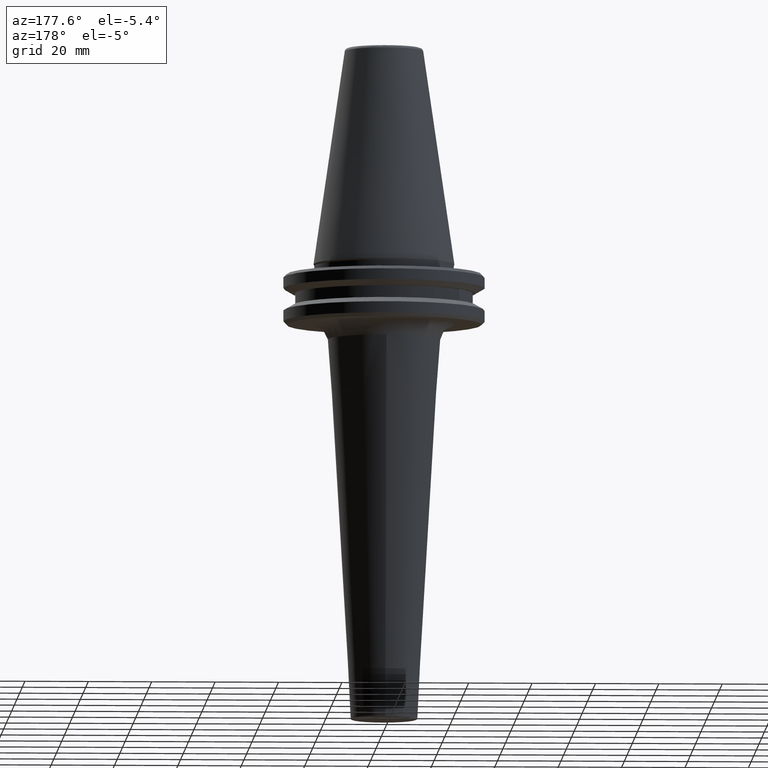
[diagram: clean part render]
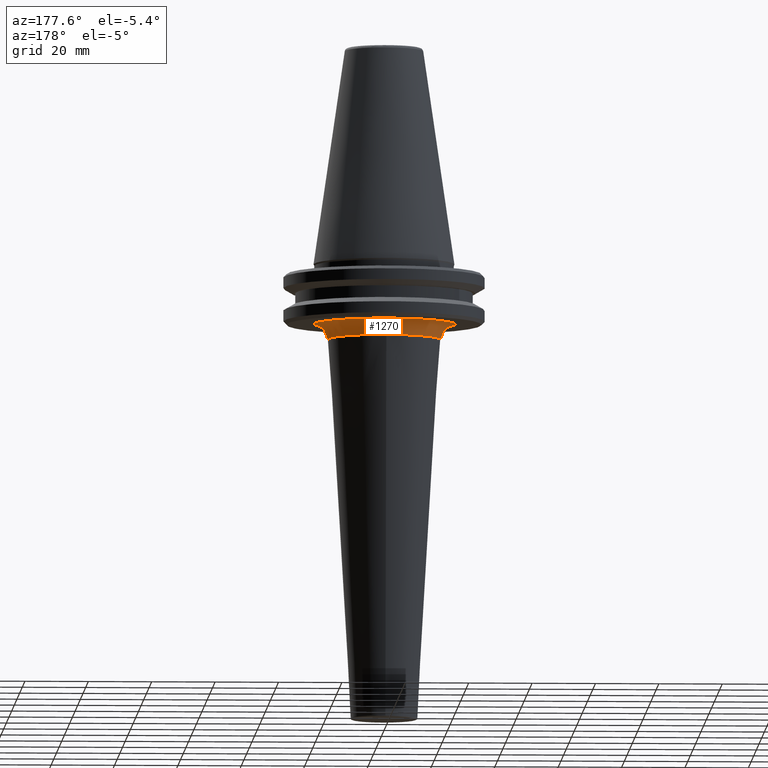
[diagram: same view with one face highlighted and labeled with its STEP entity id]
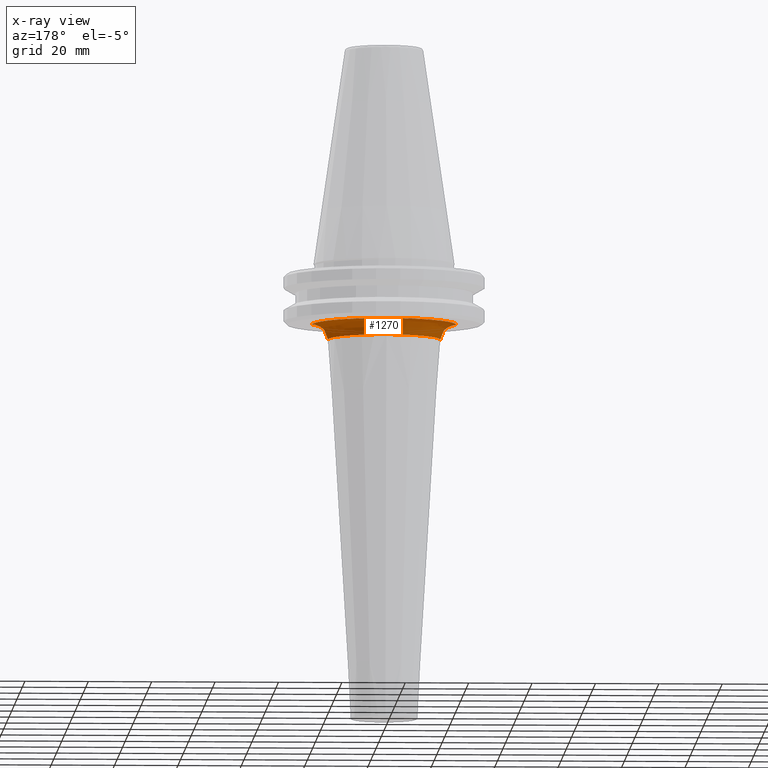
[diagram: x-ray of the same camera — body ghosted, the highlighted face saturated]
A machine part, auxiliary view. The second image highlights one B-rep face of the part: STEP entity #1270.
The next image is the same camera in x-ray: the body ghosted, the highlighted face saturated — about 0% of this face is hidden behind the body in this view.
In plain terms, the highlighted face is a freeform B-spline surface patch.
Its self-contained STEP definition (entity closure, byte-faithful):
#24 = CARTESIAN_POINT ( 'NONE',  ( 22.70899191454727600, 45.41798382909455300, -19.10000000000001200 ) ) ;
#53 = CARTESIAN_POINT ( 'NONE',  ( -12.48443514302202000, 18.97101662305907900, -19.10000000000000500 ) ) ;
#62 = CARTESIAN_POINT ( 'NONE',  ( 7.124685591807872400, 21.56244681479469300, -19.10000000000000100 ) ) ;
#63 = CARTESIAN_POINT ( 'NONE',  ( -11.94075990278029700, 19.32262212462412900, -19.10000000000000500 ) ) ;
#101 = CARTESIAN_POINT ( 'NONE',  ( 11.21800672760503300, 19.74495219188430200, -19.10000000000000500 ) ) ;
#127 = DIRECTION ( 'NONE',  ( -0.0000000000000000000, -0.0000000000000000000, -1.000000000000000000 ) ) ;
#140 = CARTESIAN_POINT ( 'NONE',  ( -17.71796768721838000, 35.43593537443676000, -23.80053854636027200 ) ) ;
#145 = CARTESIAN_POINT ( 'NONE',  ( -22.70899191454728000, 2.781049426001345100E-015, -19.10000000000001200 ) ) ;
#175 = CARTESIAN_POINT ( 'NONE',  ( -10.83020178808680700, 19.98438445815822100, -19.10000000000000500 ) ) ;
#182 = CARTESIAN_POINT ( 'NONE',  ( 7.170383493377987500, 21.54729755695138500, -19.10000000000000900 ) ) ;
#199 = CARTESIAN_POINT ( 'NONE',  ( 21.92795876943050400, 5.905563144546132300, -19.10000000000001200 ) ) ;
#210 = CARTESIAN_POINT ( 'NONE',  ( 21.85505748190117400, 6.168893864520617500, -19.10000000000000100 ) ) ;
#220 = VERTEX_POINT ( 'NONE', #749 ) ;
#222 = CARTESIAN_POINT ( 'NONE',  ( 11.30178574927150400, 19.69713086599911000, -19.10000000000000900 ) ) ;
#227 = CARTESIAN_POINT ( 'NONE',  ( 7.696099693887386000, 21.36657810251704600, -19.10000000000000100 ) ) ;
#248 = ORIENTED_EDGE ( 'NONE', *, *, #359, .F. ) ;
#264 = CARTESIAN_POINT ( 'NONE',  ( 17.88516356507829700, 0.0000000000000000000, -21.01394058202840800 ) ) ;
#285 = CIRCLE ( 'NONE', #748, 17.71796768721838300 ) ;
#304 = CARTESIAN_POINT ( 'NONE',  ( -9.838510316846580400, 20.48055445330860300, -19.10000000000000900 ) ) ;
#311 = CARTESIAN_POINT ( 'NONE',  ( 2.943820543117120700, 22.51738570470164900, -19.10000000000000500 ) ) ;
#312 = CARTESIAN_POINT ( 'NONE',  ( -9.117275058928992600, 20.79845451496240500, -19.10000000000000500 ) ) ;
#313 = DIRECTION ( 'NONE',  ( 1.000000000000000000, 0.0000000000000000000, 7.832607019497949600E-016 ) ) ;
#319 = VERTEX_POINT ( 'NONE', #837 ) ;
#322 = DIRECTION ( 'NONE',  ( -0.0000000000000000000, -0.0000000000000000000, -1.000000000000000000 ) ) ;
#328 = CARTESIAN_POINT ( 'NONE',  ( 0.0000000000000000000, 0.0000000000000000000, -23.80053854636027200 ) ) ;
#338 = CARTESIAN_POINT ( 'NONE',  ( 20.34594037541522100, 10.08677240011639700, -19.10000000000000900 ) ) ;
#340 = ORIENTED_EDGE ( 'NONE', *, *, #362, .F. ) ;
#343 = B_SPLINE_CURVE_WITH_KNOTS ( 'NONE', 3,
 ( #1047, #558, #1294, #569, #1530, #199, #1167, #437, #1173, #210, #563, #918, #683, #443, #676, #452, #338, #1520, #806, #1548, #1319, #1314, #1188, #1184, #1067, #1060, #698, #583, #577, #474, #352, #346, #222, #101, #937, #464, #821, #227, #541, #1504, #182, #62, #655, #1396, #1277, #1267, #1512, #1402, #546, #423, #311, #894, #779, #662, #1147, #1141, #1025, #1505, #1268, #1148, #1142, #1026, #1016, #895, #889, #780, #656, #431, #424, #312, #304, #175, #63, #53, #1397, #1567, #1564, #1562, #1465, #1458, #1455, #1449, #1444, #1347, #1338, #1333, #1328, #1323, #1223, #1217, #1210, #1199, #1091, #1085, #1082, #1077, #969, #965, #962, #955, #948, #852, #848, #841, #838, #833 ),
 .UNSPECIFIED., .F., .F.,
 ( 4, 1, 1, 1, 1, 1, 2, 2, 1, 1, 1, 1, 2, 2, 1, 1, 1, 2, 2, 2, 1, 1, 1, 2, 2, 1, 1, 1, 1, 2, 2, 1, 1, 1, 1, 1, 2, 2, 2, 1, 1, 1, 1, 1, 2, 2, 1, 1, 1, 1, 2, 2, 1, 1, 1, 2, 2, 2, 1, 1, 1, 2, 2, 1, 1, 1, 1, 2, 2, 1, 1, 1, 1, 1, 2, 2, 4 ),
 ( 0.0000000000000000000, 0.03124999999999884800, 0.04687499999999825800, 0.05468749999999798800, 0.05859374999999788400, 0.06054687499999787000, 0.06152343749999787000, 0.06249999999999786300, 0.09374999999999804300, 0.1093749999999982100, 0.1171874999999983100, 0.1210937499999983100, 0.1230468749999983200, 0.1249999999999983300, 0.1562499999999977200, 0.1718749999999974700, 0.1796874999999972500, 0.1835937499999971100, 0.1874999999999969700, 0.2499999999999942300, 0.2812499999999928400, 0.2968749999999922300, 0.3046874999999919500, 0.3085937499999917800, 0.3124999999999916200, 0.3437499999999911700, 0.3593749999999909500, 0.3671874999999908400, 0.3710937499999908400, 0.3730468749999907900, 0.3749999999999907900, 0.4062499999999913400, 0.4218749999999916200, 0.4296874999999917800, 0.4335937499999918400, 0.4355468749999919000, 0.4365234374999919000, 0.4374999999999919000, 0.4999999999999933400, 0.5312499999999941200, 0.5468749999999943400, 0.5546874999999945600, 0.5585937499999946700, 0.5605468749999946700, 0.5615234374999946700, 0.5624999999999945600, 0.5937499999999951200, 0.6093749999999953400, 0.6171874999999954500, 0.6210937499999955600, 0.6230468749999955600, 0.6249999999999955600, 0.6562499999999957800, 0.6718749999999958900, 0.6796874999999958900, 0.6835937499999958900, 0.6874999999999958900, 0.7499999999999950000, 0.7812499999999945600, 0.7968749999999942300, 0.8046874999999942300, 0.8085937499999942300, 0.8124999999999941200, 0.8437499999999937800, 0.8593749999999935600, 0.8671874999999933400, 0.8710937499999933400, 0.8730468749999933400, 0.8749999999999933400, 0.9062499999999943400, 0.9218749999999947800, 0.9296874999999948900, 0.9335937499999950000, 0.9355468749999950000, 0.9365234374999951200, 0.9374999999999952300, 1.000000000000000000 ),
 .UNSPECIFIED. ) ;
#346 = CARTESIAN_POINT ( 'NONE',  ( 11.46535677420873100, 19.60238906957253100, -19.10000000000000500 ) ) ;
#352 = CARTESIAN_POINT ( 'NONE',  ( 11.70969577305229600, 19.45883454713527200, -19.10000000000000100 ) ) ;
#353 = VERTEX_POINT ( 'NONE', #1205 ) ;
#359 = EDGE_CURVE ( 'NONE', #353, #1176, #343, .T. ) ;
#362 = EDGE_CURVE ( 'NONE', #220, #353, #1097, .T. ) ;
#388 = CARTESIAN_POINT ( 'NONE',  ( 22.70899191454727600, 0.0000000000000000000, -24.10000000000000900 ) ) ;
#390 = CARTESIAN_POINT ( 'NONE',  ( -17.88516356507829000, 35.77032713015658100, -21.01394058202841500 ) ) ;
#403 = ORIENTED_EDGE ( 'NONE', *, *, #587, .F. ) ;
#423 = CARTESIAN_POINT ( 'NONE',  ( 2.967141229268134100, 22.51432552920555400, -19.10000000000000500 ) ) ;
#424 = CARTESIAN_POINT ( 'NONE',  ( -9.077970229197122300, 20.81563651992216900, -19.10000000000000900 ) ) ;
#431 = CARTESIAN_POINT ( 'NONE',  ( -8.996116743485028900, 20.85114541637153400, -19.10000000000000500 ) ) ;
#437 = CARTESIAN_POINT ( 'NONE',  ( 21.87186041376118000, 6.109046669895388200, -19.10000000000000900 ) ) ;
#440 = DIRECTION ( 'NONE',  ( -1.224646799147353200E-016, -1.000000000000000000, 0.0000000000000000000 ) ) ;
#443 = CARTESIAN_POINT ( 'NONE',  ( 20.57900806070783900, 9.605219140281919400, -19.10000000000000500 ) ) ;
#444 = AXIS2_PLACEMENT_3D ( 'NONE', #1163, #440, #1291 ) ;
#452 = CARTESIAN_POINT ( 'NONE',  ( 20.38541641859088600, 10.00675667125554800, -19.10000000000000900 ) ) ;
#464 = CARTESIAN_POINT ( 'NONE',  ( 9.499000968168772400, 20.65037322333756000, -19.10000000000001200 ) ) ;
#474 = CARTESIAN_POINT ( 'NONE',  ( 12.27269733375143100, 19.11378120019985300, -19.10000000000000500 ) ) ;
#483 = ORIENTED_EDGE ( 'NONE', *, *, #1533, .F. ) ;
#504 = DIRECTION ( 'NONE',  ( 1.000000000000000000, 0.0000000000000000000, 0.0000000000000000000 ) ) ;
#505 = CARTESIAN_POINT ( 'NONE',  ( 19.91738258006084200, 0.0000000000000000000, -19.10000000000000900 ) ) ;
#541 = CARTESIAN_POINT ( 'NONE',  ( 7.390000191579001200, 21.47327947382647300, -19.10000000000000900 ) ) ;
#546 = CARTESIAN_POINT ( 'NONE',  ( 3.011376890881948000, 22.50845174692105700, -19.10000000000000500 ) ) ;
#548 = FACE_OUTER_BOUND ( 'NONE', #1062, .T. ) ;
#558 = CARTESIAN_POINT ( 'NONE',  ( 22.53387928200569600, 2.894676541319572700, -19.10000000000000500 ) ) ;
#563 = CARTESIAN_POINT ( 'NONE',  ( 21.65440305982546900, 6.877166887711775100, -19.10000000000001200 ) ) ;
#569 = CARTESIAN_POINT ( 'NONE',  ( 22.14552823584938300, 5.047543402301036200, -19.10000000000000500 ) ) ;
#577 = CARTESIAN_POINT ( 'NONE',  ( 13.37020937540625600, 18.38330332800170200, -19.10000000000000900 ) ) ;
#581 = CARTESIAN_POINT ( 'NONE',  ( 17.71796768721838700, 35.43593537443676000, -23.80053854636027200 ) ) ;
#583 = CARTESIAN_POINT ( 'NONE',  ( 14.26209213155019600, 17.68797170327077600, -19.10000000000000100 ) ) ;
#587 = EDGE_CURVE ( 'NONE', #1498, #319, #964, .T. ) ;
#590 = AXIS2_PLACEMENT_3D ( 'NONE', #328, #322, #313 ) ;
#623 = CARTESIAN_POINT ( 'NONE',  ( -19.91738258006083500, 39.83476516012167000, -19.10000000000001600 ) ) ;
#655 = CARTESIAN_POINT ( 'NONE',  ( 6.404064745213852400, 21.79900423190450800, -19.10000000000001200 ) ) ;
#656 = CARTESIAN_POINT ( 'NONE',  ( -8.873213462343576600, 20.90403564890848600, -19.09999999999999800 ) ) ;
#662 = CARTESIAN_POINT ( 'NONE',  ( -1.787245060035782800, 22.64864664003775400, -19.10000000000000500 ) ) ;
#676 = CARTESIAN_POINT ( 'NONE',  ( 20.44426384718390100, 9.886591895383357800, -19.10000000000000100 ) ) ;
#683 = CARTESIAN_POINT ( 'NONE',  ( 20.83823067498308400, 9.038520517813658700, -19.10000000000000500 ) ) ;
#686 = ORIENTED_EDGE ( 'NONE', *, *, #1206, .T. ) ;
#698 = CARTESIAN_POINT ( 'NONE',  ( 15.98073517585308100, 16.20503147477514000, -19.10000000000000900 ) ) ;
#718 = CARTESIAN_POINT ( 'NONE',  ( 22.60000000000000100, 2.222231710459885400, -19.10000000000001200 ) ) ;
#726 = CARTESIAN_POINT ( 'NONE',  ( 22.60000000000000100, 1.481487806973256400, -19.10000000000000500 ) ) ;
#731 = CARTESIAN_POINT ( 'NONE',  ( 22.60000000000000100, 0.7407439034866281100, -19.10000000000000500 ) ) ;
#747 = CARTESIAN_POINT ( 'NONE',  ( 22.70899191454728000, 0.0000000000000000000, -19.10000000000001200 ) ) ;
#748 = AXIS2_PLACEMENT_3D ( 'NONE', #842, #127, #966 ) ;
#749 = CARTESIAN_POINT ( 'NONE',  ( 22.60000000000000100, -1.092821595696183200E-016, -19.10059403244675400 ) ) ;
#779 = CARTESIAN_POINT ( 'NONE',  ( 0.2371357370425870300, 22.74788942742289100, -19.10000000000001200 ) ) ;
#780 = CARTESIAN_POINT ( 'NONE',  ( -8.585577771667052700, 21.02483440653504200, -19.10000000000000100 ) ) ;
#806 = CARTESIAN_POINT ( 'NONE',  ( 19.97400382659774800, 10.82998463086309100, -19.10000000000000100 ) ) ;
#821 = CARTESIAN_POINT ( 'NONE',  ( 8.303485021422886800, 21.14231869542352600, -19.10000000000000900 ) ) ;
#825 = CARTESIAN_POINT ( 'NONE',  ( 17.71796768721838300, 0.0000000000000000000, -23.80053854636027200 ) ) ;
#827 = CARTESIAN_POINT ( 'NONE',  ( 22.60000000000000100, -1.092821595696183200E-016, -19.10059403244675400 ) ) ;
#833 = CARTESIAN_POINT ( 'NONE',  ( -22.70899191454727600, 2.781049426001344700E-015, -19.10000000000000900 ) ) ;
#837 = CARTESIAN_POINT ( 'NONE',  ( 2.169825241554822400E-015, 17.71796768721838000, -23.80053854636027200 ) ) ;
#838 = CARTESIAN_POINT ( 'NONE',  ( -22.70899191454728300, 1.351712233149833900, -19.10000000000000500 ) ) ;
#840 = CARTESIAN_POINT ( 'NONE',  ( 17.71796768721838300, 0.0000000000000000000, -23.80053854636027200 ) ) ;
#841 = CARTESIAN_POINT ( 'NONE',  ( -22.58928858776656100, 2.692569807078828900, -19.10000000000000900 ) ) ;
#842 = CARTESIAN_POINT ( 'NONE',  ( 0.0000000000000000000, 0.0000000000000000000, -23.80053854636027200 ) ) ;
#848 = CARTESIAN_POINT ( 'NONE',  ( -22.34614120524321700, 4.043354017329361800, -19.10000000000000500 ) ) ;
#852 = CARTESIAN_POINT ( 'NONE',  ( -22.34194275865035800, 4.066494175412644000, -19.10000000000000500 ) ) ;
#860 = CARTESIAN_POINT ( 'NONE',  ( -22.70899191454727300, 45.41798382909455300, -19.10000000000001200 ) ) ;
#889 = CARTESIAN_POINT ( 'NONE',  ( -8.006860918261434500, 21.25598478194949300, -19.10000000000000500 ) ) ;
#894 = CARTESIAN_POINT ( 'NONE',  ( 1.582918530853898900, 22.69404766507299300, -19.10000000000000900 ) ) ;
#895 = CARTESIAN_POINT ( 'NONE',  ( -6.835645323239933000, 21.67649697342374900, -19.10000000000000500 ) ) ;
#918 = CARTESIAN_POINT ( 'NONE',  ( 21.31561265244318500, 7.889310823815604200, -19.10000000000000900 ) ) ;
#937 = CARTESIAN_POINT ( 'NONE',  ( 10.49072085110791400, 20.15425997658005400, -19.10000000000000500 ) ) ;
#948 = CARTESIAN_POINT ( 'NONE',  ( -22.33390904422447300, 4.110388987279360000, -19.10000000000000100 ) ) ;
#955 = CARTESIAN_POINT ( 'NONE',  ( -22.32176393371455000, 4.176204563320555800, -19.10000000000000100 ) ) ;
#962 = CARTESIAN_POINT ( 'NONE',  ( -22.29276357042692800, 4.329587748437888600, -19.10000000000000100 ) ) ;
#964 = CIRCLE ( 'NONE', #590, 17.71796768721838300 ) ;
#965 = CARTESIAN_POINT ( 'NONE',  ( -22.23211575546055500, 4.635608149423963400, -19.10000000000000500 ) ) ;
#966 = DIRECTION ( 'NONE',  ( 1.000000000000000000, 0.0000000000000000000, 7.832607019497949600E-016 ) ) ;
#969 = CARTESIAN_POINT ( 'NONE',  ( -22.10023177196316600, 5.244665074401818400, -19.10000000000000900 ) ) ;
#978 = CARTESIAN_POINT ( 'NONE',  ( -17.71796768721838300, 2.169825241554822800E-015, -23.80053854636027200 ) ) ;
#990 = CARTESIAN_POINT ( 'NONE',  ( -22.70899191454727600, 2.781049426001344700E-015, -19.10000000000000900 ) ) ;
#1016 = CARTESIAN_POINT ( 'NONE',  ( -5.808120147718191200, 21.96529846436514100, -19.10000000000000500 ) ) ;
#1025 = CARTESIAN_POINT ( 'NONE',  ( -4.535450324012382200, 22.25262473102008800, -19.10000000000000900 ) ) ;
#1026 = CARTESIAN_POINT ( 'NONE',  ( -5.090867963096051200, 22.13101562132297700, -19.10000000000000500 ) ) ;
#1047 = CARTESIAN_POINT ( 'NONE',  ( 22.60000000000000100, 2.222231710459885400, -19.10000000000001200 ) ) ;
#1060 = CARTESIAN_POINT ( 'NONE',  ( 17.01807976931723900, 15.11208342392116300, -19.10000000000000500 ) ) ;
#1062 = EDGE_LOOP ( 'NONE', ( #403, #686, #248, #340, #1079, #483 ) ) ;
#1067 = CARTESIAN_POINT ( 'NONE',  ( 18.00338355645638100, 13.84143554480487200, -19.10000000000000900 ) ) ;
#1077 = CARTESIAN_POINT ( 'NONE',  ( -21.79411039070990300, 6.450843416380321200, -19.10000000000000500 ) ) ;
#1079 = ORIENTED_EDGE ( 'NONE', *, *, #1304, .F. ) ;
#1082 = CARTESIAN_POINT ( 'NONE',  ( -21.45911478233544400, 7.464249695829576800, -19.10000000000000100 ) ) ;
#1085 = CARTESIAN_POINT ( 'NONE',  ( -21.18754012914666200, 8.172417065886504500, -19.10000000000000100 ) ) ;
#1091 = CARTESIAN_POINT ( 'NONE',  ( -21.17017044413414700, 8.217317981937693400, -19.10000000000000500 ) ) ;
#1097 = B_SPLINE_CURVE_WITH_KNOTS ( 'NONE', 3,
 ( #827, #731, #726, #718 ),
 .UNSPECIFIED., .F., .F.,
 ( 4, 4 ),
 ( 0.5000000000000006700, 1.000000000000000000 ),
 .UNSPECIFIED. ) ;
#1103 = CARTESIAN_POINT ( 'NONE',  ( 17.88516356507830100, 35.77032713015658100, -21.01394058202841500 ) ) ;
#1108 = CIRCLE ( 'NONE', #1362, 4.999999999999997300 ) ;
#1134 =( BOUNDED_SURFACE ( )  B_SPLINE_SURFACE ( 3, 3, ( 
 ( #825, #581, #140, #978 ),
 ( #264, #1103, #390, #1234 ),
 ( #505, #1358, #623, #1473 ),
 ( #747, #24, #860, #145 ) ),
 .UNSPECIFIED., .F., .F., .F. ) 
 B_SPLINE_SURFACE_WITH_KNOTS ( ( 4, 4 ),
 ( 4, 4 ),
 ( 0.0000000000000000000, 1.000000000000000000 ),
 ( 0.0000000000000000000, 1.000000000000000000 ),
 .UNSPECIFIED. ) 
 GEOMETRIC_REPRESENTATION_ITEM ( )  RATIONAL_B_SPLINE_SURFACE ( (
 ( 1.000000000000000000, 0.3333333333333334300, 0.3333333333333334300, 1.000000000000000000),
 ( 0.8186493336483505700, 0.2728831112161169100, 0.2728831112161169100, 0.8186493336483505700),
 ( 0.8186493336483505700, 0.2728831112161169100, 0.2728831112161169100, 0.8186493336483505700),
 ( 1.000000000000000000, 0.3333333333333334300, 0.3333333333333334300, 1.000000000000000000) ) ) 
 REPRESENTATION_ITEM ( '' )  SURFACE ( )  );
#1141 = CARTESIAN_POINT ( 'NONE',  ( -3.956525524192697800, 22.36623090224771100, -19.10000000000000500 ) ) ;
#1142 = CARTESIAN_POINT ( 'NONE',  ( -5.071437033964926400, 22.13547504329554600, -19.10000000000000900 ) ) ;
#1147 = CARTESIAN_POINT ( 'NONE',  ( -2.793359186401864300, 22.55436923320744600, -19.10000000000000900 ) ) ;
#1148 = CARTESIAN_POINT ( 'NONE',  ( -5.030259322429194500, 22.14486897852148700, -19.10000000000000900 ) ) ;
#1163 = CARTESIAN_POINT ( 'NONE',  ( -22.70899191454727600, 2.781049426001344700E-015, -24.10000000000000900 ) ) ;
#1167 = CARTESIAN_POINT ( 'NONE',  ( 21.88887156771760400, 6.048035729093747600, -19.10000000000000500 ) ) ;
#1173 = CARTESIAN_POINT ( 'NONE',  ( 21.86046197866144800, 6.149709799698658900, -19.10000000000000100 ) ) ;
#1176 = VERTEX_POINT ( 'NONE', #990 ) ;
#1184 = CARTESIAN_POINT ( 'NONE',  ( 18.05864449842357900, 13.76925278777096700, -19.10000000000001200 ) ) ;
#1188 = CARTESIAN_POINT ( 'NONE',  ( 18.17042655712631900, 13.62142567255293600, -19.10000000000000500 ) ) ;
#1194 = CIRCLE ( 'NONE', #444, 4.999999999999997300 ) ;
#1199 = CARTESIAN_POINT ( 'NONE',  ( -21.13644692876812300, 8.303685097248790100, -19.10000000000000500 ) ) ;
#1205 = CARTESIAN_POINT ( 'NONE',  ( 22.60000000000000100, 2.222231710459885400, -19.10000000000001200 ) ) ;
#1206 = EDGE_CURVE ( 'NONE', #1498, #1176, #1194, .T. ) ;
#1210 = CARTESIAN_POINT ( 'NONE',  ( -21.08548280496491900, 8.433045065354358300, -19.10000000000000500 ) ) ;
#1217 = CARTESIAN_POINT ( 'NONE',  ( -20.96391456081163800, 8.733550056906418400, -19.10000000000000500 ) ) ;
#1223 = CARTESIAN_POINT ( 'NONE',  ( -20.71017025138849400, 9.329220303900244800, -19.10000000000000500 ) ) ;
#1233 = DIRECTION ( 'NONE',  ( 0.0000000000000000000, 1.000000000000000000, 0.0000000000000000000 ) ) ;
#1234 = CARTESIAN_POINT ( 'NONE',  ( -17.88516356507829700, 2.190300831219999800E-015, -21.01394058202840800 ) ) ;
#1267 = CARTESIAN_POINT ( 'NONE',  ( 3.540952051642733100, 22.43250972243321700, -19.10000000000000900 ) ) ;
#1268 = CARTESIAN_POINT ( 'NONE',  ( -4.968480887406507800, 22.15887266258472000, -19.10000000000000500 ) ) ;
#1270 = ADVANCED_FACE ( 'NONE', ( #548 ), #1134, .F. ) ;
#1277 = CARTESIAN_POINT ( 'NONE',  ( 4.155738380781895300, 22.33062011292081900, -19.10000000000000500 ) ) ;
#1291 = DIRECTION ( 'NONE',  ( -1.000000000000000000, 1.224646799147353500E-016, 0.0000000000000000000 ) ) ;
#1294 = CARTESIAN_POINT ( 'NONE',  ( 22.39041087411854000, 3.895025786082501700, -19.10000000000000500 ) ) ;
#1304 = EDGE_CURVE ( 'NONE', #1414, #220, #1108, .T. ) ;
#1314 = CARTESIAN_POINT ( 'NONE',  ( 18.33666171561370500, 13.39878463443094800, -19.10000000000000500 ) ) ;
#1319 = CARTESIAN_POINT ( 'NONE',  ( 18.71447824511703900, 12.87298632174845800, -19.10000000000000500 ) ) ;
#1323 = CARTESIAN_POINT ( 'NONE',  ( -20.16025034807594500, 10.49920185344662300, -19.10000000000000500 ) ) ;
#1328 = CARTESIAN_POINT ( 'NONE',  ( -19.61615108615154000, 11.46542784830131400, -19.09999999999999800 ) ) ;
#1333 = CARTESIAN_POINT ( 'NONE',  ( -19.17170696730854500, 12.17178967777839600, -19.09999999999999800 ) ) ;
#1338 = CARTESIAN_POINT ( 'NONE',  ( -19.11983895022667200, 12.25312547851289400, -19.10000000000000500 ) ) ;
#1346 = CARTESIAN_POINT ( 'NONE',  ( -17.71796768721838300, 2.475437333778084000E-015, -23.80053854636027200 ) ) ;
#1347 = CARTESIAN_POINT ( 'NONE',  ( -19.01719800296309200, 12.41185897885514900, -19.10000000000000900 ) ) ;
#1358 = CARTESIAN_POINT ( 'NONE',  ( 19.91738258006083800, 39.83476516012167000, -19.10000000000001600 ) ) ;
#1362 = AXIS2_PLACEMENT_3D ( 'NONE', #388, #1233, #504 ) ;
#1396 = CARTESIAN_POINT ( 'NONE',  ( 5.375464638796444200, 22.08395364110433700, -19.10000000000000500 ) ) ;
#1397 = CARTESIAN_POINT ( 'NONE',  ( -12.71495228517453000, 18.81588762207449900, -19.10000000000000500 ) ) ;
#1402 = CARTESIAN_POINT ( 'NONE',  ( 3.077708404730654200, 22.49954534301933500, -19.10000000000000500 ) ) ;
#1414 = VERTEX_POINT ( 'NONE', #840 ) ;
#1444 = CARTESIAN_POINT ( 'NONE',  ( -18.86184633175742300, 12.64887228125661900, -19.10000000000000500 ) ) ;
#1449 = CARTESIAN_POINT ( 'NONE',  ( -18.48962734677236600, 13.19429468340998700, -19.10000000000000500 ) ) ;
#1455 = CARTESIAN_POINT ( 'NONE',  ( -17.70626236811473600, 14.25470494058314900, -19.10000000000000500 ) ) ;
#1458 = CARTESIAN_POINT ( 'NONE',  ( -16.96807465722962500, 15.11145450878829000, -19.10000000000000500 ) ) ;
#1465 = CARTESIAN_POINT ( 'NONE',  ( -15.40272321560226800, 16.75538896603607200, -19.10000000000000500 ) ) ;
#1473 = CARTESIAN_POINT ( 'NONE',  ( -19.91738258006084200, 2.439175882406475700E-015, -19.10000000000000900 ) ) ;
#1498 = VERTEX_POINT ( 'NONE', #1346 ) ;
#1504 = CARTESIAN_POINT ( 'NONE',  ( 7.258298939473838200, 21.51784541890820200, -19.10000000000000100 ) ) ;
#1505 = CARTESIAN_POINT ( 'NONE',  ( -4.824248131653285500, 22.19093739396933900, -19.10000000000000500 ) ) ;
#1512 = CARTESIAN_POINT ( 'NONE',  ( 3.232328087040174000, 22.47809362059046400, -19.10000000000000900 ) ) ;
#1520 = CARTESIAN_POINT ( 'NONE',  ( 20.32685356291108300, 10.12518834111717000, -19.10000000000001200 ) ) ;
#1530 = CARTESIAN_POINT ( 'NONE',  ( 22.00371120944794600, 5.620163084742415500, -19.10000000000000900 ) ) ;
#1533 = EDGE_CURVE ( 'NONE', #319, #1414, #285, .T. ) ;
#1548 = CARTESIAN_POINT ( 'NONE',  ( 19.42984927625483500, 11.79617946812537200, -19.10000000000000500 ) ) ;
#1562 = CARTESIAN_POINT ( 'NONE',  ( -14.26027067779519400, 17.73794758822123500, -19.10000000000000100 ) ) ;
#1564 = CARTESIAN_POINT ( 'NONE',  ( -12.94288099440612400, 18.65982285517501500, -19.10000000000000500 ) ) ;
#1567 = CARTESIAN_POINT ( 'NONE',  ( -12.86807781722359100, 18.71148141499915200, -19.10000000000000500 ) ) ;